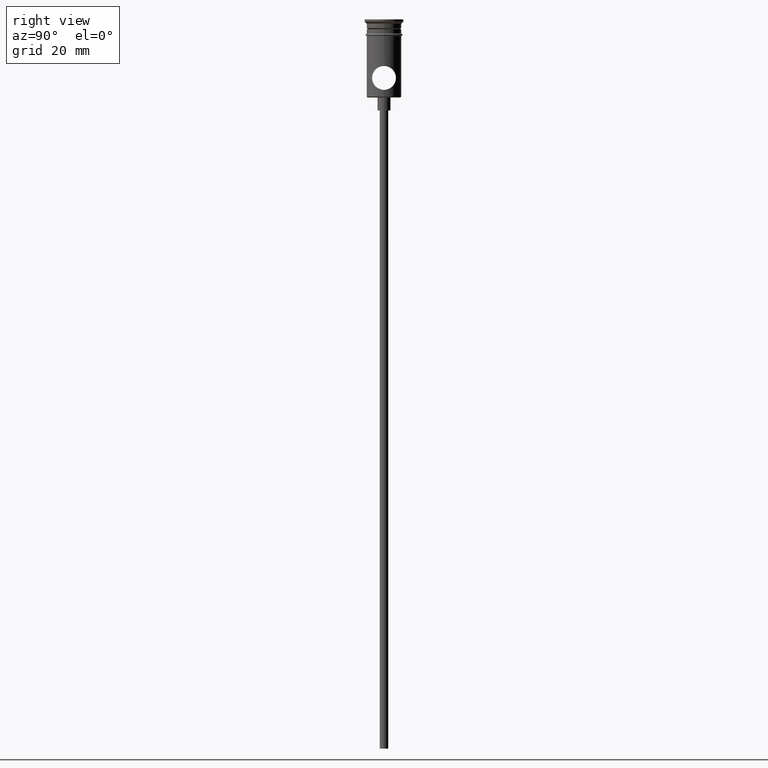
[diagram: clean part render]
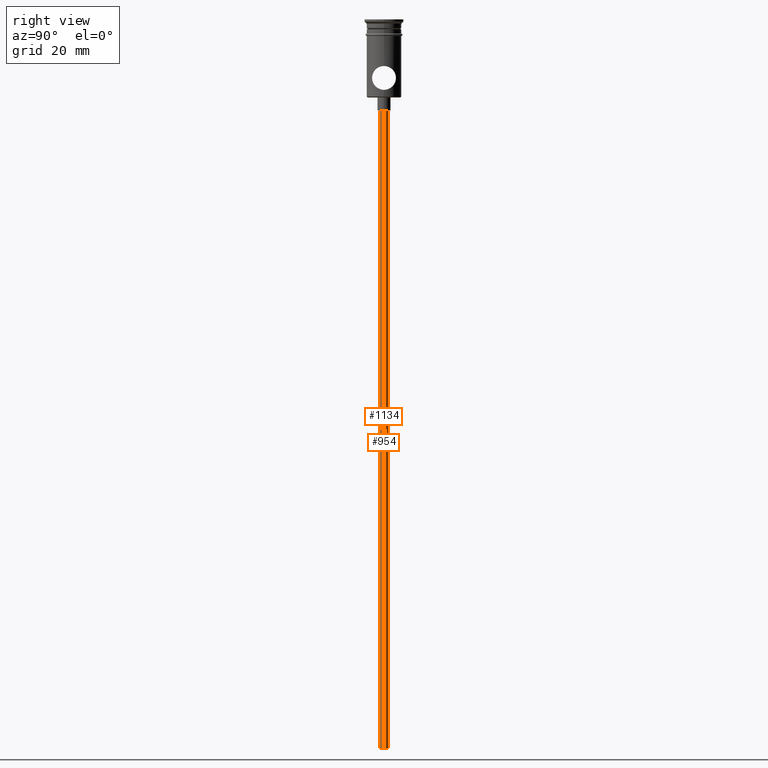
[diagram: same view with one multi-face feature highlighted, each face labeled with its STEP entity id]
A machine part, right view. The highlighted faces form ONE feature: a constant-radius fillet chain: 2 tangent blend faces with common blend radius 1 mm. The faces share edges in the B-rep.
Their STEP definitions:
[1] entity #1134 (Cylinder):
#22 = ORIENTED_EDGE ( 'NONE', *, *, #862, .F. ) ;
#27 = AXIS2_PLACEMENT_3D ( 'NONE', #820, #509, #41 ) ;
#41 = DIRECTION ( 'NONE',  ( 1.000000000000000000, 0.000000000000000000, 0.000000000000000000 ) ) ;
#100 = VERTEX_POINT ( 'NONE', #1261 ) ;
#101 = CARTESIAN_POINT ( 'NONE',  ( 0.9999999999999997780, 0.000000000000000000, -20.99999999999999645 ) ) ;
#113 = EDGE_LOOP ( 'NONE', ( #968, #22, #1324, #1381 ) ) ;
#139 = VECTOR ( 'NONE', #589, 1000.000000000000000 ) ;
#157 = EDGE_CURVE ( 'NONE', #537, #1182, #915, .T. ) ;
#193 = CARTESIAN_POINT ( 'NONE',  ( 0.9999999999999997780, 0.000000000000000000, -167.9999999999999716 ) ) ;
#270 = CARTESIAN_POINT ( 'NONE',  ( -0.9999999999999997780, 1.224646799147352961E-16, -20.99999999999999645 ) ) ;
#272 = VERTEX_POINT ( 'NONE', #358 ) ;
#358 = CARTESIAN_POINT ( 'NONE',  ( -0.9999999999999997780, 1.224646799147352961E-16, -167.9999999999999716 ) ) ;
#398 = VECTOR ( 'NONE', #1183, 1000.000000000000000 ) ;
#462 = LINE ( 'NONE', #1008, #139 ) ;
#492 = CIRCLE ( 'NONE', #600, 0.9999999999999997780 ) ;
#509 = DIRECTION ( 'NONE',  ( -0.000000000000000000, -0.000000000000000000, 1.000000000000000000 ) ) ;
#537 = VERTEX_POINT ( 'NONE', #101 ) ;
#569 = EDGE_CURVE ( 'NONE', #272, #1182, #462, .T. ) ;
#589 = DIRECTION ( 'NONE',  ( -0.000000000000000000, -0.000000000000000000, 1.000000000000000000 ) ) ;
#600 = AXIS2_PLACEMENT_3D ( 'NONE', #1277, #1169, #1293 ) ;
#820 = CARTESIAN_POINT ( 'NONE',  ( 0.000000000000000000, 0.000000000000000000, -167.9999999999999716 ) ) ;
#823 = DIRECTION ( 'NONE',  ( -1.000000000000000000, 0.000000000000000000, 0.000000000000000000 ) ) ;
#862 = EDGE_CURVE ( 'NONE', #100, #272, #492, .T. ) ;
#900 = EDGE_CURVE ( 'NONE', #100, #537, #1075, .T. ) ;
#915 = CIRCLE ( 'NONE', #1139, 0.9999999999999997780 ) ;
#929 = CARTESIAN_POINT ( 'NONE',  ( 0.000000000000000000, 0.000000000000000000, -20.99999999999999645 ) ) ;
#933 = CYLINDRICAL_SURFACE ( 'NONE', #27, 0.9999999999999997780 ) ;
#968 = ORIENTED_EDGE ( 'NONE', *, *, #569, .F. ) ;
#1008 = CARTESIAN_POINT ( 'NONE',  ( -0.9999999999999997780, 1.224646799147352961E-16, -167.9999999999999716 ) ) ;
#1075 = LINE ( 'NONE', #193, #398 ) ;
#1134 = ADVANCED_FACE ( 'NONE', ( #1248 ), #933, .T. ) ;
#1139 = AXIS2_PLACEMENT_3D ( 'NONE', #929, #1165, #823 ) ;
#1165 = DIRECTION ( 'NONE',  ( 0.000000000000000000, 0.000000000000000000, -1.000000000000000000 ) ) ;
#1169 = DIRECTION ( 'NONE',  ( 0.000000000000000000, 0.000000000000000000, -1.000000000000000000 ) ) ;
#1182 = VERTEX_POINT ( 'NONE', #270 ) ;
#1183 = DIRECTION ( 'NONE',  ( -0.000000000000000000, -0.000000000000000000, 1.000000000000000000 ) ) ;
#1248 = FACE_OUTER_BOUND ( 'NONE', #113, .T. ) ;
#1261 = CARTESIAN_POINT ( 'NONE',  ( 0.9999999999999997780, 0.000000000000000000, -167.9999999999999716 ) ) ;
#1277 = CARTESIAN_POINT ( 'NONE',  ( 0.000000000000000000, 0.000000000000000000, -167.9999999999999716 ) ) ;
#1293 = DIRECTION ( 'NONE',  ( -1.000000000000000000, 0.000000000000000000, 0.000000000000000000 ) ) ;
#1324 = ORIENTED_EDGE ( 'NONE', *, *, #900, .T. ) ;
#1381 = ORIENTED_EDGE ( 'NONE', *, *, #157, .T. ) ;
[2] entity #954 (Cylinder):
#6 = CIRCLE ( 'NONE', #1397, 0.9999999999999997780 ) ;
#100 = VERTEX_POINT ( 'NONE', #1261 ) ;
#101 = CARTESIAN_POINT ( 'NONE',  ( 0.9999999999999997780, 0.000000000000000000, -20.99999999999999645 ) ) ;
#139 = VECTOR ( 'NONE', #589, 1000.000000000000000 ) ;
#159 = AXIS2_PLACEMENT_3D ( 'NONE', #445, #301, #636 ) ;
#193 = CARTESIAN_POINT ( 'NONE',  ( 0.9999999999999997780, 0.000000000000000000, -167.9999999999999716 ) ) ;
#252 = EDGE_CURVE ( 'NONE', #272, #100, #6, .T. ) ;
#261 = DIRECTION ( 'NONE',  ( -1.000000000000000000, 0.000000000000000000, 0.000000000000000000 ) ) ;
#270 = CARTESIAN_POINT ( 'NONE',  ( -0.9999999999999997780, 1.224646799147352961E-16, -20.99999999999999645 ) ) ;
#272 = VERTEX_POINT ( 'NONE', #358 ) ;
#301 = DIRECTION ( 'NONE',  ( -0.000000000000000000, -0.000000000000000000, 1.000000000000000000 ) ) ;
#336 = CARTESIAN_POINT ( 'NONE',  ( 0.000000000000000000, 0.000000000000000000, -167.9999999999999716 ) ) ;
#351 = CIRCLE ( 'NONE', #1143, 0.9999999999999997780 ) ;
#358 = CARTESIAN_POINT ( 'NONE',  ( -0.9999999999999997780, 1.224646799147352961E-16, -167.9999999999999716 ) ) ;
#398 = VECTOR ( 'NONE', #1183, 1000.000000000000000 ) ;
#401 = ORIENTED_EDGE ( 'NONE', *, *, #569, .T. ) ;
#445 = CARTESIAN_POINT ( 'NONE',  ( 0.000000000000000000, 0.000000000000000000, -167.9999999999999716 ) ) ;
#462 = LINE ( 'NONE', #1008, #139 ) ;
#537 = VERTEX_POINT ( 'NONE', #101 ) ;
#560 = ORIENTED_EDGE ( 'NONE', *, *, #252, .F. ) ;
#569 = EDGE_CURVE ( 'NONE', #272, #1182, #462, .T. ) ;
#589 = DIRECTION ( 'NONE',  ( -0.000000000000000000, -0.000000000000000000, 1.000000000000000000 ) ) ;
#636 = DIRECTION ( 'NONE',  ( 1.000000000000000000, 0.000000000000000000, 0.000000000000000000 ) ) ;
#769 = DIRECTION ( 'NONE',  ( -1.000000000000000000, 0.000000000000000000, 0.000000000000000000 ) ) ;
#865 = FACE_OUTER_BOUND ( 'NONE', #1332, .T. ) ;
#887 = DIRECTION ( 'NONE',  ( 0.000000000000000000, 0.000000000000000000, -1.000000000000000000 ) ) ;
#900 = EDGE_CURVE ( 'NONE', #100, #537, #1075, .T. ) ;
#954 = ADVANCED_FACE ( 'NONE', ( #865 ), #1300, .T. ) ;
#1008 = CARTESIAN_POINT ( 'NONE',  ( -0.9999999999999997780, 1.224646799147352961E-16, -167.9999999999999716 ) ) ;
#1075 = LINE ( 'NONE', #193, #398 ) ;
#1143 = AXIS2_PLACEMENT_3D ( 'NONE', #1239, #1146, #261 ) ;
#1146 = DIRECTION ( 'NONE',  ( 0.000000000000000000, 0.000000000000000000, -1.000000000000000000 ) ) ;
#1182 = VERTEX_POINT ( 'NONE', #270 ) ;
#1183 = DIRECTION ( 'NONE',  ( -0.000000000000000000, -0.000000000000000000, 1.000000000000000000 ) ) ;
#1239 = CARTESIAN_POINT ( 'NONE',  ( 0.000000000000000000, 0.000000000000000000, -20.99999999999999645 ) ) ;
#1261 = CARTESIAN_POINT ( 'NONE',  ( 0.9999999999999997780, 0.000000000000000000, -167.9999999999999716 ) ) ;
#1300 = CYLINDRICAL_SURFACE ( 'NONE', #159, 0.9999999999999997780 ) ;
#1332 = EDGE_LOOP ( 'NONE', ( #560, #401, #1391, #1388 ) ) ;
#1363 = EDGE_CURVE ( 'NONE', #1182, #537, #351, .T. ) ;
#1388 = ORIENTED_EDGE ( 'NONE', *, *, #900, .F. ) ;
#1391 = ORIENTED_EDGE ( 'NONE', *, *, #1363, .T. ) ;
#1397 = AXIS2_PLACEMENT_3D ( 'NONE', #336, #887, #769 ) ;